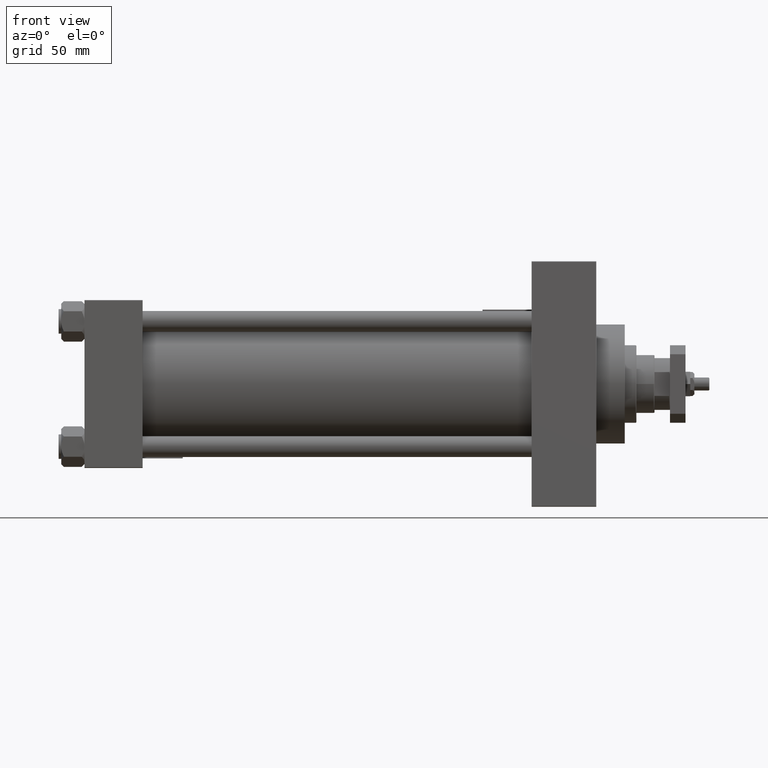
[diagram: clean part render]
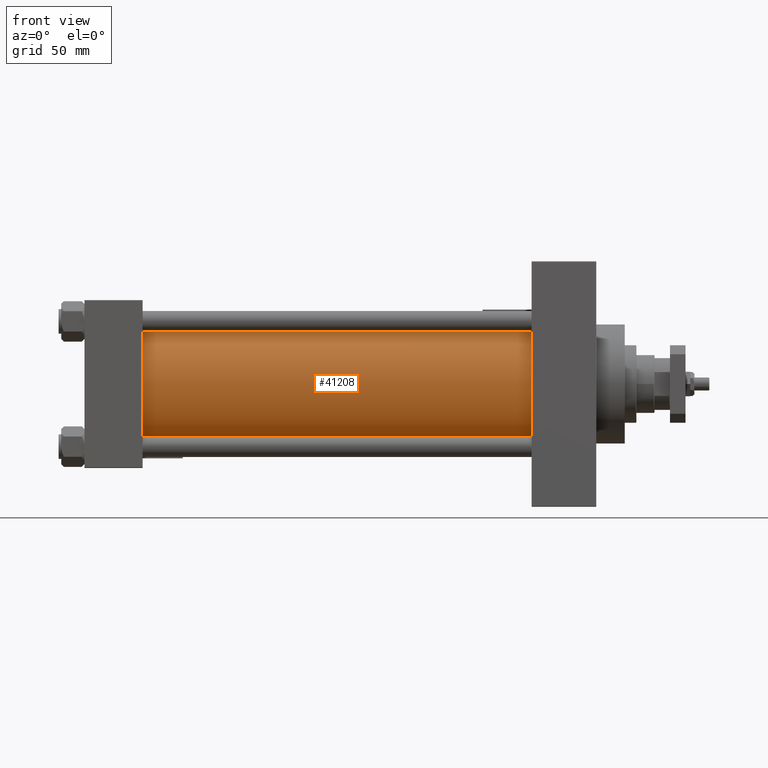
[diagram: same view with one face highlighted and labeled with its STEP entity id]
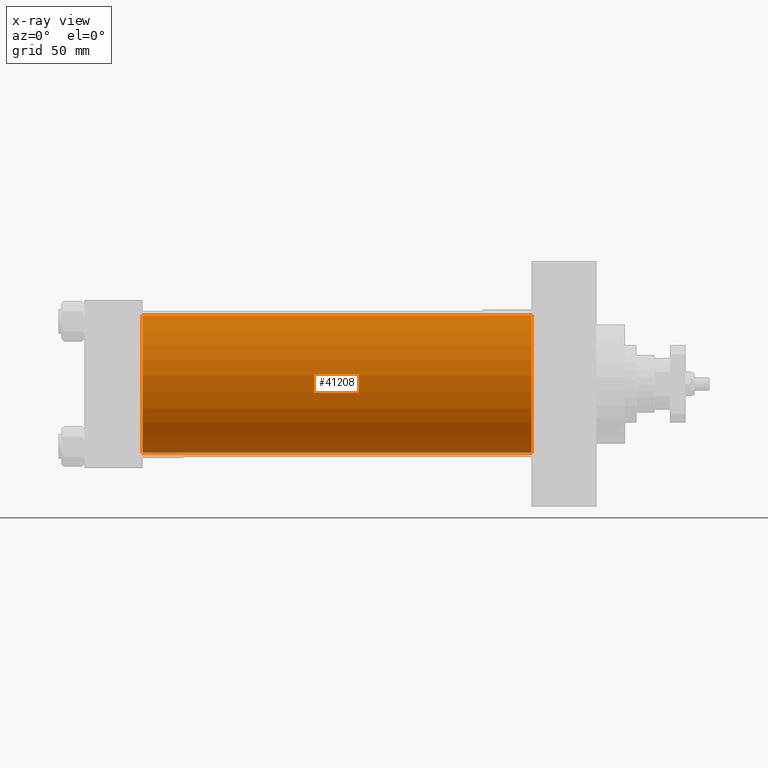
[diagram: x-ray of the same camera — body ghosted, the highlighted face saturated]
A machine part, front view. The second image highlights one B-rep face of the part: STEP entity #41208.
The next image is the same camera in x-ray: the body ghosted, the highlighted face saturated — about 0% of this face is hidden behind the body in this view.
In plain terms, the highlighted cylindrical surface (partial cylindrical patch) has radius 53 mm, axis along (-1, -0, -0).
Its self-contained STEP definition (entity closure, byte-faithful):
#4728 = VERTEX_POINT ( 'NONE', #14676 ) ;
#5134 = AXIS2_PLACEMENT_3D ( 'NONE', #38142, #55258, #33962 ) ;
#7460 = EDGE_CURVE ( 'NONE', #22095, #34423, #28499, .T. ) ;
#9658 = ORIENTED_EDGE ( 'NONE', *, *, #51891, .T. ) ;
#10058 = VECTOR ( 'NONE', #35831, 1000.000000000000000 ) ;
#12376 = CARTESIAN_POINT ( 'NONE',  ( 346.0000000000000000, 3.888542821515762466E-15, -53.00000000000000711 ) ) ;
#12953 = DIRECTION ( 'NONE',  ( 1.000000000000000000, 0.000000000000000000, 0.000000000000000000 ) ) ;
#14066 = EDGE_CURVE ( 'NONE', #34423, #4728, #24180, .T. ) ;
#14676 = CARTESIAN_POINT ( 'NONE',  ( 44.99999999999998579, 3.888542821515762466E-15, -53.00000000000000711 ) ) ;
#15559 = VERTEX_POINT ( 'NONE', #38848 ) ;
#17727 = CARTESIAN_POINT ( 'NONE',  ( 346.0000000000000000, -2.602085213965210642E-15, 0.000000000000000000 ) ) ;
#19206 = ORIENTED_EDGE ( 'NONE', *, *, #7460, .F. ) ;
#19529 = AXIS2_PLACEMENT_3D ( 'NONE', #17727, #12953, #51671 ) ;
#20148 = CARTESIAN_POINT ( 'NONE',  ( 346.0000000000000000, -2.602085213965210642E-15, 53.00000000000000711 ) ) ;
#22095 = VERTEX_POINT ( 'NONE', #20148 ) ;
#22165 = CIRCLE ( 'NONE', #5134, 53.00000000000000711 ) ;
#22392 = CARTESIAN_POINT ( 'NONE',  ( 346.0000000000000000, -2.602085213965210642E-15, 53.00000000000000711 ) ) ;
#24180 = LINE ( 'NONE', #12376, #31680 ) ;
#26580 = FACE_OUTER_BOUND ( 'NONE', #35889, .T. ) ;
#28499 = CIRCLE ( 'NONE', #19529, 53.00000000000000711 ) ;
#30811 = LINE ( 'NONE', #22392, #10058 ) ;
#31680 = VECTOR ( 'NONE', #50258, 1000.000000000000000 ) ;
#32045 = ORIENTED_EDGE ( 'NONE', *, *, #41869, .T. ) ;
#33962 = DIRECTION ( 'NONE',  ( 0.000000000000000000, 0.000000000000000000, 1.000000000000000000 ) ) ;
#34423 = VERTEX_POINT ( 'NONE', #42576 ) ;
#35831 = DIRECTION ( 'NONE',  ( -1.000000000000000000, -0.000000000000000000, -0.000000000000000000 ) ) ;
#35889 = EDGE_LOOP ( 'NONE', ( #49484, #19206, #9658, #32045 ) ) ;
#38142 = CARTESIAN_POINT ( 'NONE',  ( 44.99999999999998579, -2.602085213965210642E-15, 0.000000000000000000 ) ) ;
#38389 = AXIS2_PLACEMENT_3D ( 'NONE', #48431, #44222, #39200 ) ;
#38848 = CARTESIAN_POINT ( 'NONE',  ( 44.99999999999998579, -2.602085213965210642E-15, 53.00000000000000711 ) ) ;
#39200 = DIRECTION ( 'NONE',  ( 0.000000000000000000, 0.000000000000000000, 1.000000000000000000 ) ) ;
#41208 = ADVANCED_FACE ( 'NONE', ( #26580 ), #48691, .T. ) ;
#41869 = EDGE_CURVE ( 'NONE', #15559, #4728, #22165, .T. ) ;
#42576 = CARTESIAN_POINT ( 'NONE',  ( 346.0000000000000000, 3.888542821515762466E-15, -53.00000000000000711 ) ) ;
#44222 = DIRECTION ( 'NONE',  ( -1.000000000000000000, -0.000000000000000000, -0.000000000000000000 ) ) ;
#48431 = CARTESIAN_POINT ( 'NONE',  ( 346.0000000000000000, -2.602085213965210642E-15, 0.000000000000000000 ) ) ;
#48691 = CYLINDRICAL_SURFACE ( 'NONE', #38389, 53.00000000000000711 ) ;
#49484 = ORIENTED_EDGE ( 'NONE', *, *, #14066, .F. ) ;
#50258 = DIRECTION ( 'NONE',  ( -1.000000000000000000, -0.000000000000000000, -0.000000000000000000 ) ) ;
#51671 = DIRECTION ( 'NONE',  ( 0.000000000000000000, 0.000000000000000000, -1.000000000000000000 ) ) ;
#51891 = EDGE_CURVE ( 'NONE', #22095, #15559, #30811, .T. ) ;
#55258 = DIRECTION ( 'NONE',  ( 1.000000000000000000, -0.000000000000000000, 0.000000000000000000 ) ) ;